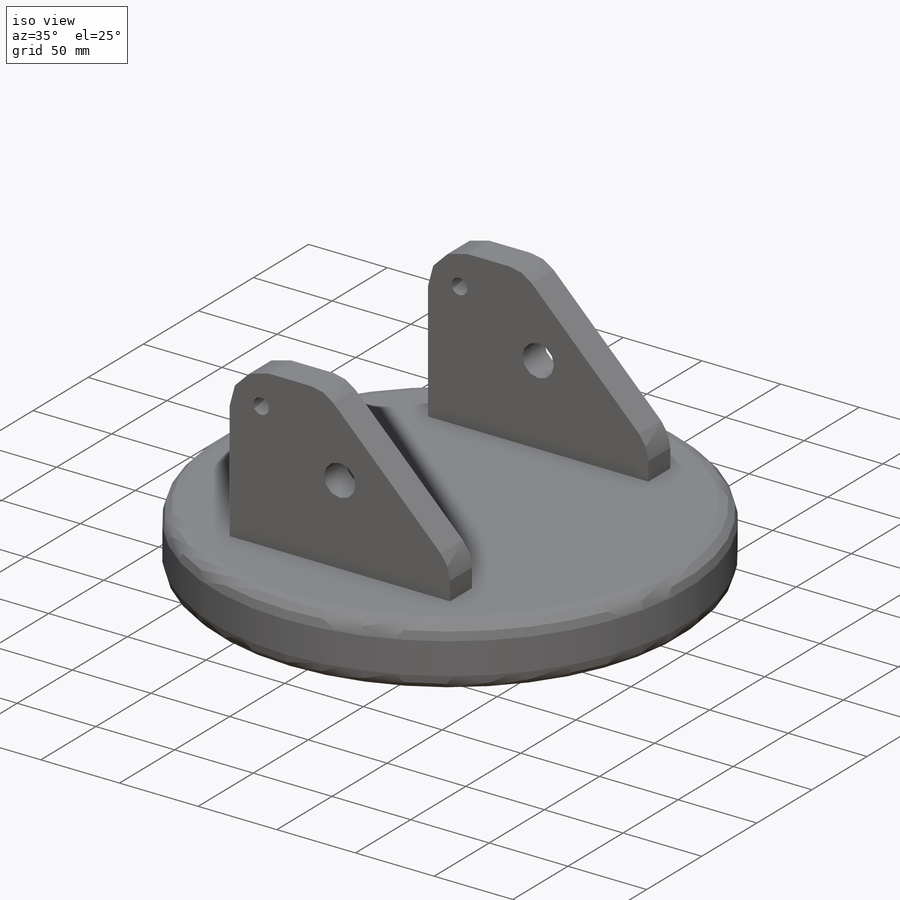
[diagram: iso view]
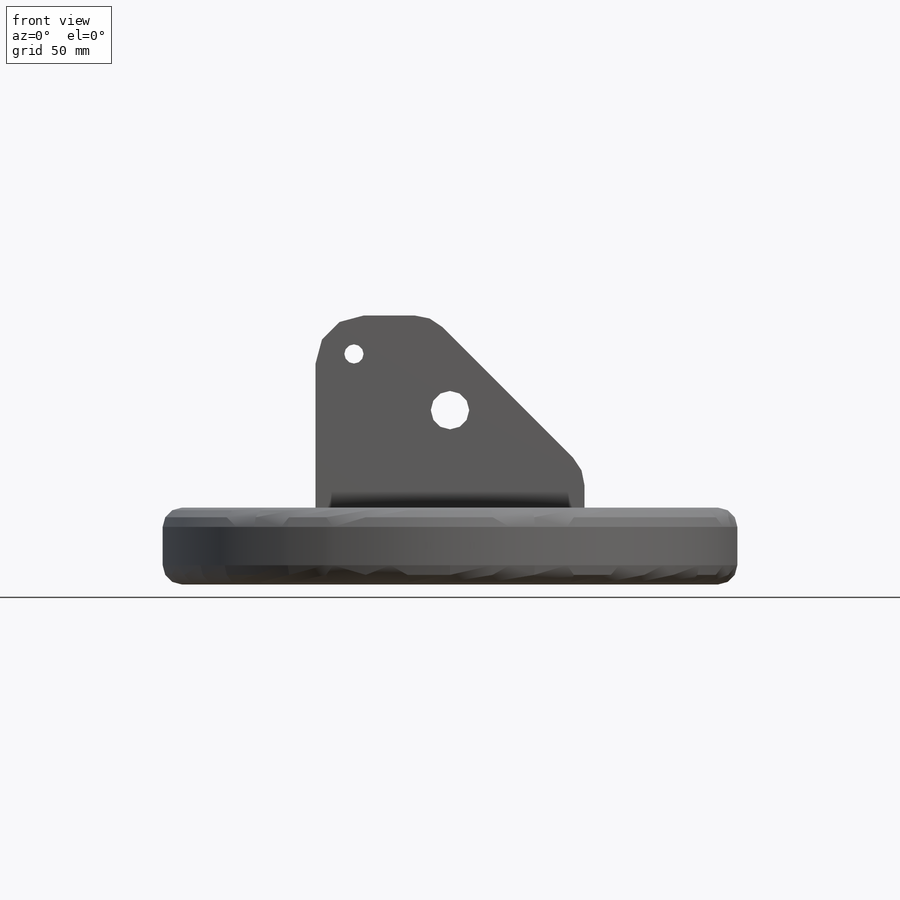
[diagram: front view]
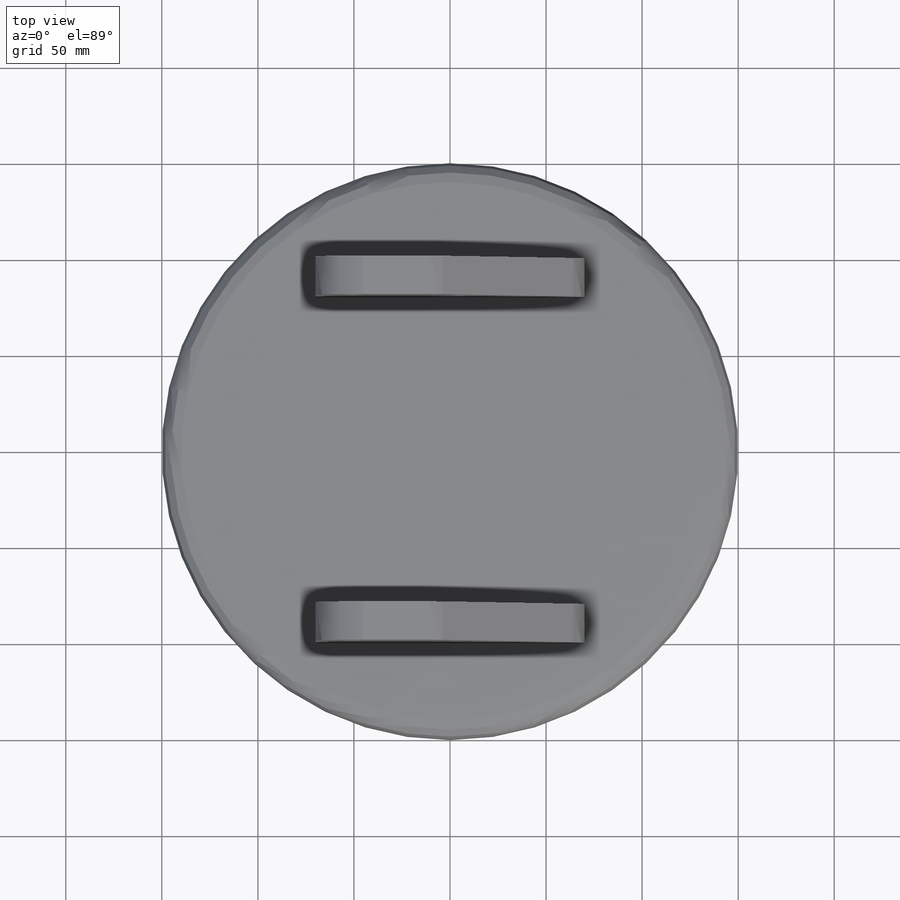
[diagram: top view]
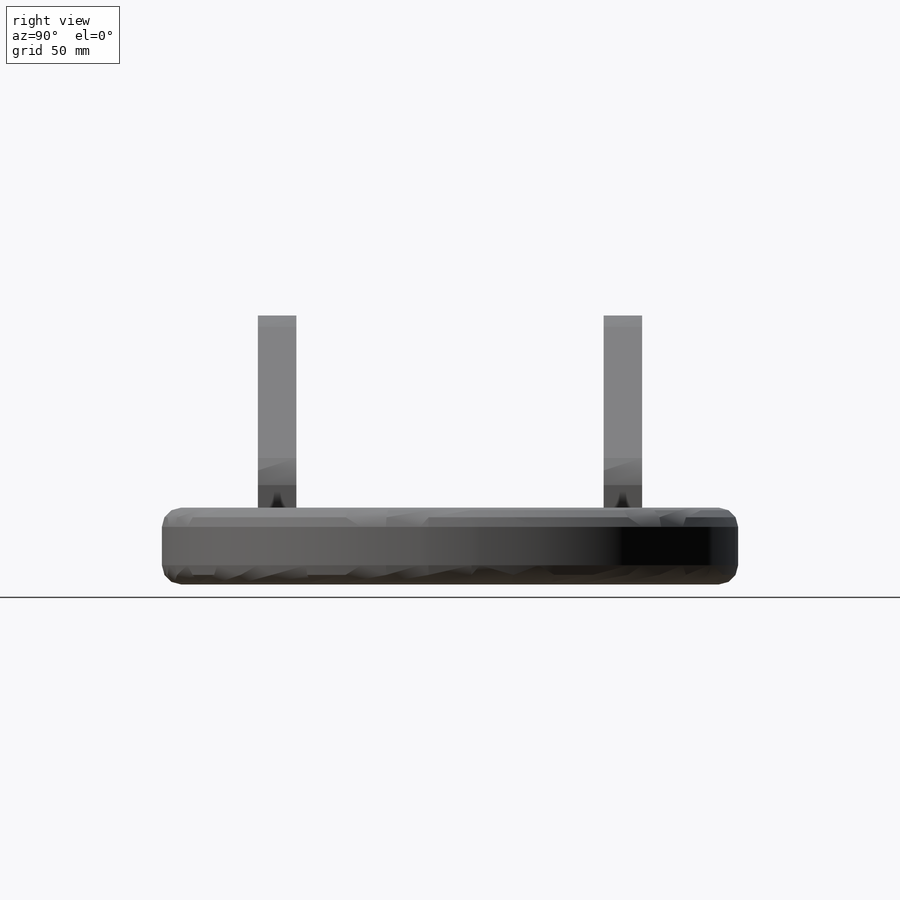
[diagram: right view]
SOLIDWORKS PART (.sldprt)
format: sldprt  version: not decoded by parser v0  size: 296,960 bytes
history: native  units: mm
features: sketch x4, fillet x4, extrude x2, cut_extrude x2, material x1, shell x1, chamfer x1 (+14 scaffold rows collapsed)
feature tree (29):
  scaffold x14  (default folders/planes/origin — collapsed)
  material  "Titanium"
  sketch  "Sketch1"  dims[D1=300.0mm]
  extrude  "Extrude1"  Depth=40mm
  fillet  "Fillet1"  Radius=10mm
  fillet  "Fillet2"  Radius=10mm
  sketch  "Sketch2"  dims[c1.D1=20.0mm c1.D2=20.0mm c1.D3=120.0mm c1.D4=80.0mm c1.D5=~133.349605mm c2.D3=80.0mm c2.D5=140.0mm c2.D6=140.0mm c2.D7=70.0mm c2.D8=20.0mm c3.D3=80.0mm c3.D4=80.0mm]
  extrude  "Extrude2"  Depth=100mm
  sketch  "Sketch3"  dims[D1=20.0mm]
  cut_extrude  "Cut-Extrude1"  [1 undecoded]
  fillet  "Fillet3"  Radius=25mm
  sketch  "Sketch5"  dims[D1=10.0mm D2=20.0mm D3=20.0mm]
  cut_extrude  "Cut-Extrude2"  [1 undecoded]
  shell  "Shell1"  Thickness=10mm
  chamfer  "Chamfer1"  Distance=80mm Angle=45deg
  fillet  "Fillet4"  Radius=20mm
decode coverage: 12 of 14 modeling features carry decoded parameters
note: ~ marks probable driven/reference dimensions
note: 2 parameter values undecoded
note: suppression state not decoded; provenance and decode notes live in map.json
